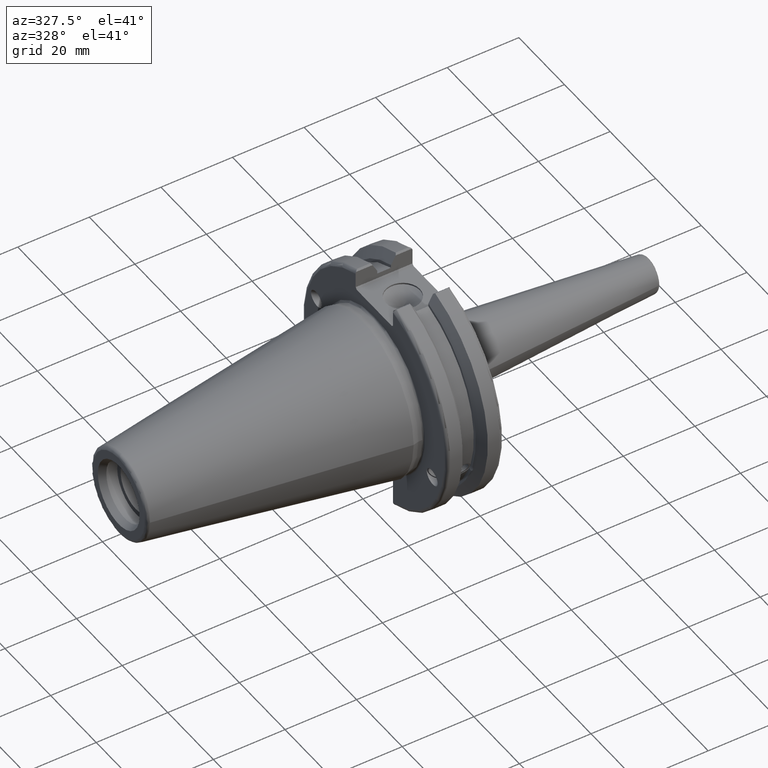
[diagram: clean part render]
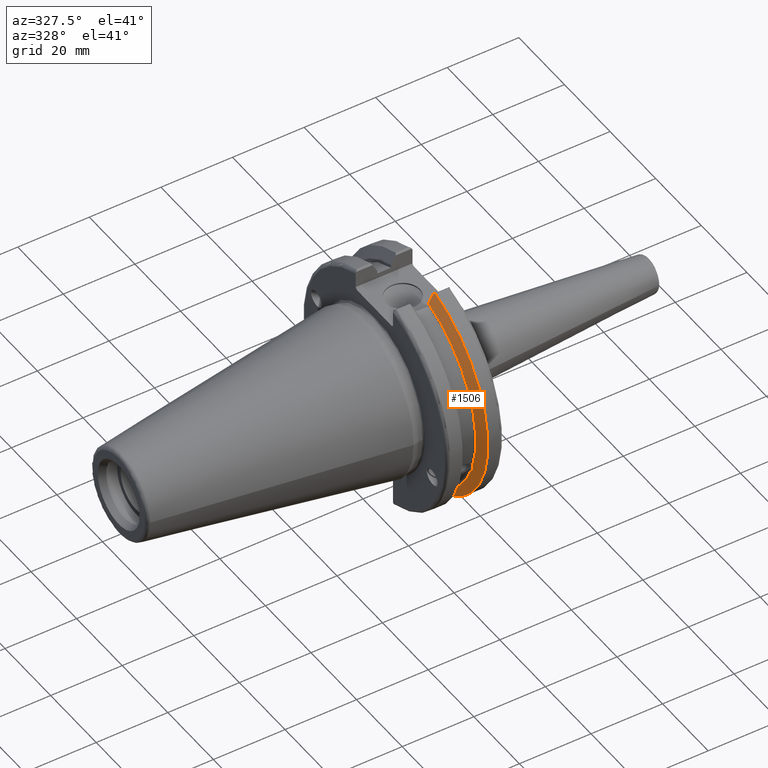
[diagram: same view with one face highlighted and labeled with its STEP entity id]
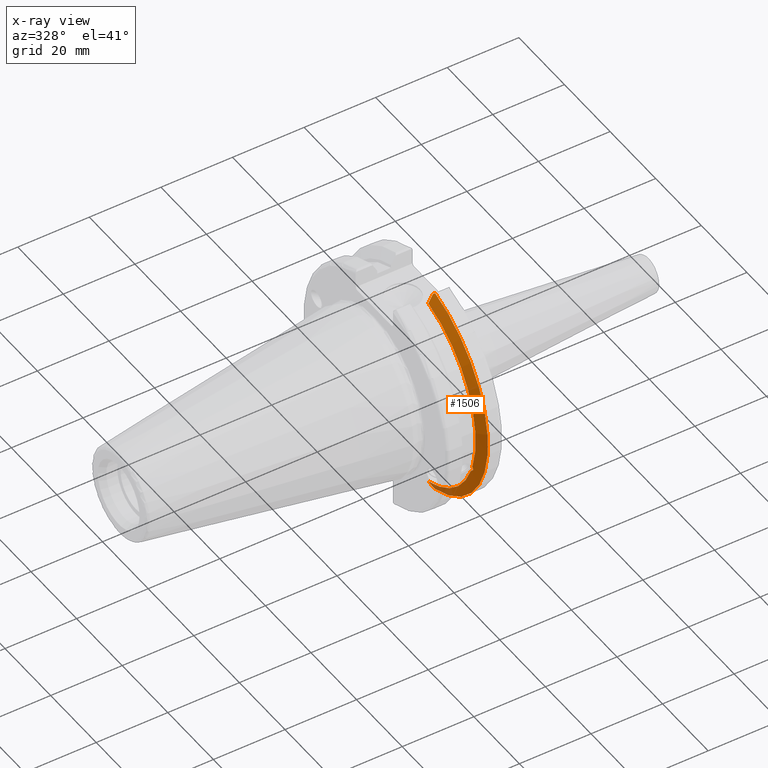
[diagram: x-ray of the same camera — body ghosted, the highlighted face saturated]
A machine part, auxiliary view. The second image highlights one B-rep face of the part: STEP entity #1506.
The next image is the same camera in x-ray: the body ghosted, the highlighted face saturated — about 4% of this face is hidden behind the body in this view.
In plain terms, the highlighted conical surface has half-angle 60 deg.
Its self-contained STEP definition (entity closure, byte-faithful):
#15=(
BOUNDED_CURVE()
B_SPLINE_CURVE(2,(#2502,#2503,#2504),.UNSPECIFIED.,.F.,.F.)
B_SPLINE_CURVE_WITH_KNOTS((3,3),(0.,0.276549142795512),.UNSPECIFIED.)
CURVE()
GEOMETRIC_REPRESENTATION_ITEM()
RATIONAL_B_SPLINE_CURVE((1.,1.00095203904184,1.00031614445102))
REPRESENTATION_ITEM('')
);
#16=(
BOUNDED_CURVE()
B_SPLINE_CURVE(2,(#2506,#2507,#2508),.UNSPECIFIED.,.F.,.F.)
B_SPLINE_CURVE_WITH_KNOTS((3,3),(0.,0.0639048713675663),.UNSPECIFIED.)
CURVE()
GEOMETRIC_REPRESENTATION_ITEM()
RATIONAL_B_SPLINE_CURVE((1.,1.00028444218286,1.00047644010578))
REPRESENTATION_ITEM('')
);
#17=(
BOUNDED_CURVE()
B_SPLINE_CURVE(2,(#2512,#2513,#2514),.UNSPECIFIED.,.F.,.F.)
B_SPLINE_CURVE_WITH_KNOTS((3,3),(0.329353533631206,0.393258405001023),
 .UNSPECIFIED.)
CURVE()
GEOMETRIC_REPRESENTATION_ITEM()
RATIONAL_B_SPLINE_CURVE((1.00047644010579,1.00028444218287,1.))
REPRESENTATION_ITEM('')
);
#18=(
BOUNDED_CURVE()
B_SPLINE_CURVE(2,(#2516,#2517,#2518),.UNSPECIFIED.,.F.,.F.)
B_SPLINE_CURVE_WITH_KNOTS((3,3),(0.0550586467393779,0.331607789535852),
 .UNSPECIFIED.)
CURVE()
GEOMETRIC_REPRESENTATION_ITEM()
RATIONAL_B_SPLINE_CURVE((1.00031614444922,1.00095203903643,1.))
REPRESENTATION_ITEM('')
);
#53=B_SPLINE_CURVE_WITH_KNOTS('',3,(#2409,#2410,#2411,#2412,#2413,#2414,
#2415,#2416),.UNSPECIFIED.,.F.,.F.,(4,2,2,4),(0.451995700189024,0.464547828547662,
0.504528771685167,0.544509714822672),.UNSPECIFIED.);
#57=B_SPLINE_CURVE_WITH_KNOTS('',3,(#2471,#2472,#2473,#2474,#2475,#2476,
#2477,#2478),.UNSPECIFIED.,.F.,.F.,(4,2,2,4),(0.544509714822672,0.584490657960178,
0.624471601097683,0.637023729456322),.UNSPECIFIED.);
#354=CONICAL_SURFACE('',#1650,30.3546886482472,1.0471975511966);
#386=FACE_OUTER_BOUND('',#479,.T.);
#479=EDGE_LOOP('',(#1131,#1132,#1133,#1134,#1135,#1136,#1137,#1138,#1139));
#577=CIRCLE('',#1651,28.9593772964944);
#578=CIRCLE('',#1652,31.75);
#579=CIRCLE('',#1653,28.9593772964944);
#665=VERTEX_POINT('',#2406);
#666=VERTEX_POINT('',#2408);
#673=VERTEX_POINT('',#2469);
#679=VERTEX_POINT('',#2499);
#680=VERTEX_POINT('',#2501);
#681=VERTEX_POINT('',#2505);
#682=VERTEX_POINT('',#2509);
#683=VERTEX_POINT('',#2511);
#684=VERTEX_POINT('',#2515);
#833=EDGE_CURVE('',#666,#665,#53,.T.);
#841=EDGE_CURVE('',#665,#673,#57,.T.);
#850=EDGE_CURVE('',#673,#679,#577,.T.);
#851=EDGE_CURVE('',#679,#680,#15,.T.);
#852=EDGE_CURVE('',#681,#680,#16,.T.);
#853=EDGE_CURVE('',#682,#681,#578,.T.);
#854=EDGE_CURVE('',#683,#682,#17,.T.);
#855=EDGE_CURVE('',#683,#684,#18,.T.);
#856=EDGE_CURVE('',#684,#666,#579,.T.);
#1131=ORIENTED_EDGE('',*,*,#833,.T.);
#1132=ORIENTED_EDGE('',*,*,#841,.T.);
#1133=ORIENTED_EDGE('',*,*,#850,.T.);
#1134=ORIENTED_EDGE('',*,*,#851,.T.);
#1135=ORIENTED_EDGE('',*,*,#852,.F.);
#1136=ORIENTED_EDGE('',*,*,#853,.F.);
#1137=ORIENTED_EDGE('',*,*,#854,.F.);
#1138=ORIENTED_EDGE('',*,*,#855,.T.);
#1139=ORIENTED_EDGE('',*,*,#856,.T.);
#1506=ADVANCED_FACE('',(#386),#354,.T.);
#1650=AXIS2_PLACEMENT_3D('',#2498,#1916,#1917);
#1651=AXIS2_PLACEMENT_3D('',#2500,#1918,#1919);
#1652=AXIS2_PLACEMENT_3D('',#2510,#1920,#1921);
#1653=AXIS2_PLACEMENT_3D('',#2519,#1922,#1923);
#1916=DIRECTION('center_axis',(1.,0.,0.));
#1917=DIRECTION('ref_axis',(0.,-1.,-1.22464679914735E-16));
#1918=DIRECTION('center_axis',(1.,0.,0.));
#1919=DIRECTION('ref_axis',(0.,0.,-1.));
#1920=DIRECTION('center_axis',(1.,0.,0.));
#1921=DIRECTION('ref_axis',(0.,0.,-1.));
#1922=DIRECTION('center_axis',(1.,0.,0.));
#1923=DIRECTION('ref_axis',(0.,0.,-1.));
#2406=CARTESIAN_POINT('',(13.2341,-27.51401829017,-10.0142836826777));
#2408=CARTESIAN_POINT('',(13.0491,-27.4956274489925,-9.09043478536245));
#2409=CARTESIAN_POINT('Ctrl Pts',(13.0491,-27.4956274489925,-9.09043478536245));
#2410=CARTESIAN_POINT('Ctrl Pts',(13.0632204071996,-27.5087667900418,-9.12860597076217));
#2411=CARTESIAN_POINT('Ctrl Pts',(13.0766929817857,-27.5206055003512,-9.16696618806877));
#2412=CARTESIAN_POINT('Ctrl Pts',(13.130081441159,-27.5642934663232,-9.32791534028656));
#2413=CARTESIAN_POINT('Ctrl Pts',(13.1682197084175,-27.5867382255984,-9.46717946402648));
#2414=CARTESIAN_POINT('Ctrl Pts',(13.2204106446058,-27.5847569104122,-9.74771639360671));
#2415=CARTESIAN_POINT('Ctrl Pts',(13.2341,-27.559599249844,-9.8890510252165));
#2416=CARTESIAN_POINT('Ctrl Pts',(13.2341,-27.51401829017,-10.0142836826777));
#2469=CARTESIAN_POINT('',(13.0491,-26.9060914640648,-10.7101715919071));
#2471=CARTESIAN_POINT('Ctrl Pts',(13.2341,-27.51401829017,-10.0142836826777));
#2472=CARTESIAN_POINT('Ctrl Pts',(13.2341,-27.4684373304961,-10.139516340139));
#2473=CARTESIAN_POINT('Ctrl Pts',(13.2204106446058,-27.3968610665578,-10.2639559818059));
#2474=CARTESIAN_POINT('Ctrl Pts',(13.1682197084175,-27.2180531796526,-10.4801333026531));
#2475=CARTESIAN_POINT('Ctrl Pts',(13.130081441159,-27.1113422433189,-10.5723885976054));
#2476=CARTESIAN_POINT('Ctrl Pts',(13.0766929817857,-26.9744191989197,-10.6676007180673));
#2477=CARTESIAN_POINT('Ctrl Pts',(13.0632204071996,-26.9406927482839,-10.6893765730703));
#2478=CARTESIAN_POINT('Ctrl Pts',(13.0491,-26.9060914640648,-10.7101715919071));
#2498=CARTESIAN_POINT('Origin',(13.8546833845378,0.,0.));
#2499=CARTESIAN_POINT('',(13.0491,-8.19,-27.7771386827498));
#2500=CARTESIAN_POINT('Origin',(13.0491,0.,0.));
#2501=CARTESIAN_POINT('',(14.3815146964874,-8.19,-30.1755016258903));
#2502=CARTESIAN_POINT('Ctrl Pts',(13.0491,-8.19,-27.7771386827498));
#2503=CARTESIAN_POINT('Ctrl Pts',(13.68773643849,-8.19,-28.9303689539956));
#2504=CARTESIAN_POINT('Ctrl Pts',(14.3815146964874,-8.19,-30.1755016258903));
#2505=CARTESIAN_POINT('',(14.6602667690756,-8.67204822802686,-30.5427254764662));
#2506=CARTESIAN_POINT('Ctrl Pts',(14.6602667690756,-8.67204822802687,-30.5427254764662));
#2507=CARTESIAN_POINT('Ctrl Pts',(14.5192085187837,-8.42917748262644,-30.357706789263));
#2508=CARTESIAN_POINT('Ctrl Pts',(14.3815146964874,-8.19,-30.1755016258903));
#2509=CARTESIAN_POINT('',(14.6602667690756,-8.67204822802685,30.5427254764662));
#2510=CARTESIAN_POINT('Origin',(14.6602667690756,0.,0.));
#2511=CARTESIAN_POINT('',(14.3815146964874,-8.19,30.1755016258903));
#2512=CARTESIAN_POINT('Ctrl Pts',(14.3815146964874,-8.19,30.1755016258903));
#2513=CARTESIAN_POINT('Ctrl Pts',(14.5192085187884,-8.42917748263465,30.3577067892692));
#2514=CARTESIAN_POINT('Ctrl Pts',(14.6602667690756,-8.67204822802686,30.5427254764662));
#2515=CARTESIAN_POINT('',(13.0491,-8.19,27.7771386827498));
#2516=CARTESIAN_POINT('Ctrl Pts',(14.3815146964874,-8.19,30.1755016258903));
#2517=CARTESIAN_POINT('Ctrl Pts',(13.687736438474,-8.19,28.9303689539668));
#2518=CARTESIAN_POINT('Ctrl Pts',(13.0491,-8.19,27.7771386827498));
#2519=CARTESIAN_POINT('Origin',(13.0491,0.,0.));